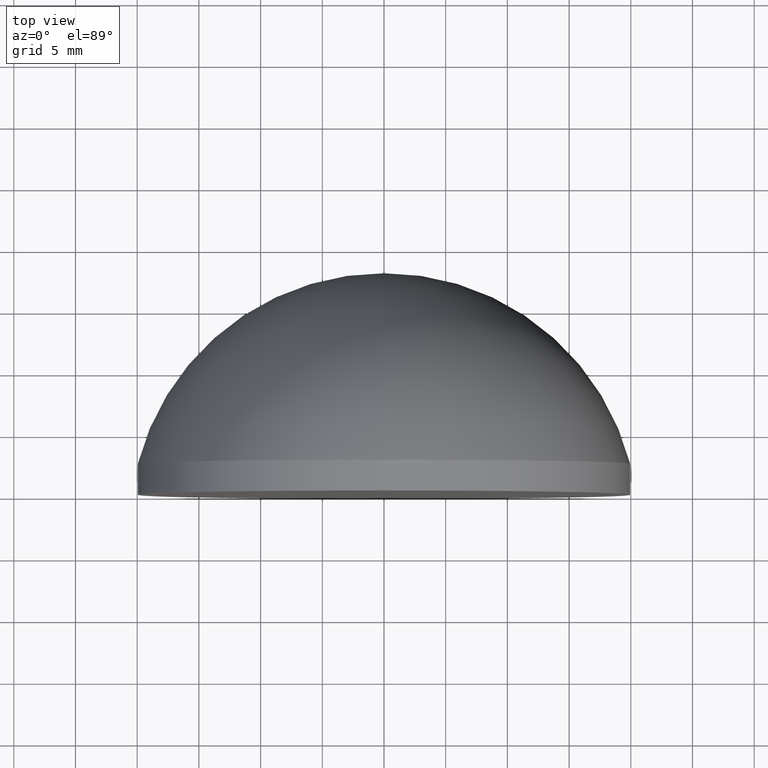
[diagram: clean part render]
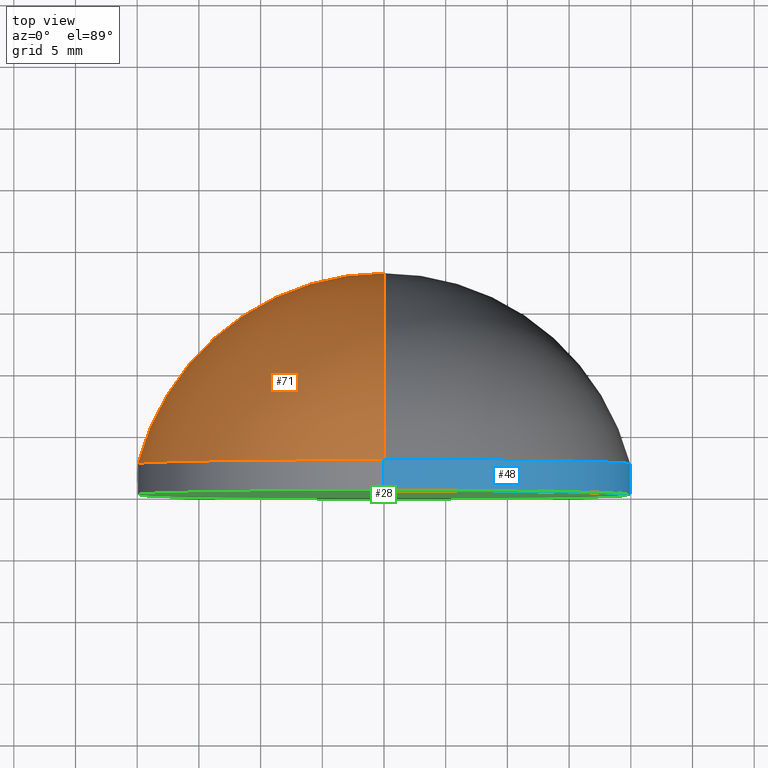
[diagram: same view with three faces highlighted in distinct colors, each labeled with its STEP entity id]
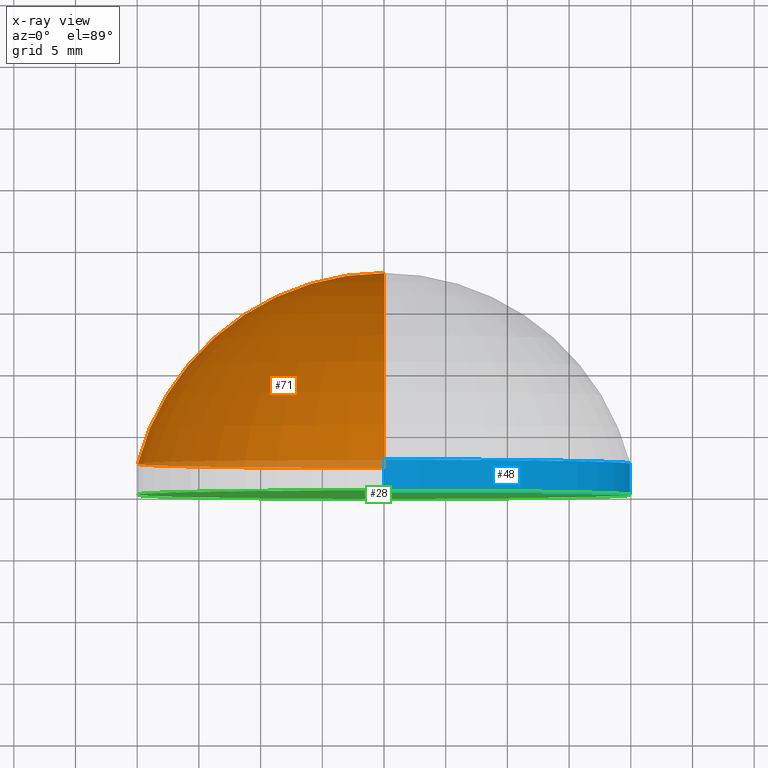
[diagram: x-ray of the same camera — body ghosted, the three highlighted faces saturated]
A machine part, top view with three faces highlighted in distinct colors.
The next image is the same camera in x-ray (body ghosted, the three faces saturated) — at least one of them is partly hidden behind the body in this view.
Their STEP definitions:

[orange] entity #71 — the highlighted toroidal blend (fillet) surface has major radius 0 mm and minor (blend) radius 20.67 mm.
#4 = ORIENTED_EDGE ( 'NONE', *, *, #84, .F. ) ;
#14 = DIRECTION ( 'NONE',  ( 0.000000000000000000, 0.000000000000000000, 1.000000000000000000 ) ) ;
#16 = DIRECTION ( 'NONE',  ( -0.000000000000000000, 1.000000000000000000, -0.000000000000000000 ) ) ;
#30 = CARTESIAN_POINT ( 'NONE',  ( 0.000000000000000000, 2.499999999999996447, 20.00000000000000355 ) ) ;
#32 = DIRECTION ( 'NONE',  ( 1.000000000000000000, 0.000000000000000000, 1.224646799147353207E-16 ) ) ;
#53 = TOROIDAL_SURFACE ( 'NONE', #117, -1.249999708081983574E-05, 20.67000000000000171 ) ;
#58 = AXIS2_PLACEMENT_3D ( 'NONE', #122, #165, #168 ) ;
#62 = AXIS2_PLACEMENT_3D ( 'NONE', #124, #32, #164 ) ;
#63 = CARTESIAN_POINT ( 'NONE',  ( 0.000000000000000000, 17.94999999999999929, 0.000000000000000000 ) ) ;
#71 = ADVANCED_FACE ( 'NONE', ( #104 ), #53, .T. ) ;
#72 = VERTEX_POINT ( 'NONE', #30 ) ;
#73 = ORIENTED_EDGE ( 'NONE', *, *, #187, .T. ) ;
#78 = CARTESIAN_POINT ( 'NONE',  ( 2.449293598294706513E-15, 2.499999999999996447, -20.00000000000000355 ) ) ;
#83 = AXIS2_PLACEMENT_3D ( 'NONE', #185, #91, #201 ) ;
#84 = EDGE_CURVE ( 'NONE', #93, #182, #147, .T. ) ;
#91 = DIRECTION ( 'NONE',  ( -0.000000000000000000, 1.000000000000000000, -0.000000000000000000 ) ) ;
#93 = VERTEX_POINT ( 'NONE', #78 ) ;
#104 = FACE_OUTER_BOUND ( 'NONE', #181, .T. ) ;
#117 = AXIS2_PLACEMENT_3D ( 'NONE', #167, #16, #14 ) ;
#122 = CARTESIAN_POINT ( 'NONE',  ( 0.000000000000000000, -2.719999999996218332, -1.249999708081983574E-05 ) ) ;
#124 = CARTESIAN_POINT ( 'NONE',  ( -1.530808141437727086E-21, -2.719999999996218332, 1.249999708081983574E-05 ) ) ;
#128 = ORIENTED_EDGE ( 'NONE', *, *, #189, .T. ) ;
#146 = CIRCLE ( 'NONE', #58, 20.67000000000000171 ) ;
#147 = CIRCLE ( 'NONE', #62, 20.67000000000000171 ) ;
#164 = DIRECTION ( 'NONE',  ( 1.224646799147353207E-16, 0.000000000000000000, -1.000000000000000000 ) ) ;
#165 = DIRECTION ( 'NONE',  ( -1.000000000000000000, 0.000000000000000000, 0.000000000000000000 ) ) ;
#167 = CARTESIAN_POINT ( 'NONE',  ( 0.000000000000000000, -2.719999999996218332, 0.000000000000000000 ) ) ;
#168 = DIRECTION ( 'NONE',  ( 0.000000000000000000, 0.000000000000000000, 1.000000000000000000 ) ) ;
#172 = CIRCLE ( 'NONE', #83, 20.00000000000000000 ) ;
#181 = EDGE_LOOP ( 'NONE', ( #4, #128, #73 ) ) ;
#182 = VERTEX_POINT ( 'NONE', #63 ) ;
#185 = CARTESIAN_POINT ( 'NONE',  ( 0.000000000000000000, 2.499999999999996891, 0.000000000000000000 ) ) ;
#187 = EDGE_CURVE ( 'NONE', #72, #182, #146, .T. ) ;
#189 = EDGE_CURVE ( 'NONE', #93, #72, #172, .T. ) ;
#201 = DIRECTION ( 'NONE',  ( 0.000000000000000000, 0.000000000000000000, 1.000000000000000000 ) ) ;

[blue] entity #48 — the highlighted cylindrical surface (partial cylindrical patch) has radius 20 mm, axis along (-0, 1, -0).
#5 = ORIENTED_EDGE ( 'NONE', *, *, #11, .T. ) ;
#11 = EDGE_CURVE ( 'NONE', #97, #150, #166, .T. ) ;
#27 = EDGE_CURVE ( 'NONE', #72, #93, #143, .T. ) ;
#30 = CARTESIAN_POINT ( 'NONE',  ( 0.000000000000000000, 2.499999999999996447, 20.00000000000000355 ) ) ;
#34 = VECTOR ( 'NONE', #61, 1000.000000000000000 ) ;
#42 = LINE ( 'NONE', #106, #129 ) ;
#43 = CYLINDRICAL_SURFACE ( 'NONE', #161, 20.00000000000000000 ) ;
#48 = ADVANCED_FACE ( 'NONE', ( #153 ), #43, .T. ) ;
#60 = CARTESIAN_POINT ( 'NONE',  ( 0.000000000000000000, -3.469446951953614189E-15, 20.00000000000000000 ) ) ;
#61 = DIRECTION ( 'NONE',  ( -0.000000000000000000, 1.000000000000000000, -0.000000000000000000 ) ) ;
#72 = VERTEX_POINT ( 'NONE', #30 ) ;
#76 = DIRECTION ( 'NONE',  ( -0.000000000000000000, 1.000000000000000000, -0.000000000000000000 ) ) ;
#77 = CARTESIAN_POINT ( 'NONE',  ( 0.000000000000000000, 17.94999999999999929, 20.00000000000000000 ) ) ;
#78 = CARTESIAN_POINT ( 'NONE',  ( 2.449293598294706513E-15, 2.499999999999996447, -20.00000000000000355 ) ) ;
#79 = CARTESIAN_POINT ( 'NONE',  ( 2.449293598294706513E-15, -3.469446951953614189E-15, -20.00000000000000000 ) ) ;
#87 = DIRECTION ( 'NONE',  ( 0.000000000000000000, 0.000000000000000000, 1.000000000000000000 ) ) ;
#89 = AXIS2_PLACEMENT_3D ( 'NONE', #100, #76, #87 ) ;
#93 = VERTEX_POINT ( 'NONE', #78 ) ;
#97 = VERTEX_POINT ( 'NONE', #60 ) ;
#100 = CARTESIAN_POINT ( 'NONE',  ( 0.000000000000000000, 2.499999999999996891, 0.000000000000000000 ) ) ;
#102 = DIRECTION ( 'NONE',  ( -0.000000000000000000, 1.000000000000000000, -0.000000000000000000 ) ) ;
#106 = CARTESIAN_POINT ( 'NONE',  ( 2.449293598294706513E-15, 17.94999999999999929, -20.00000000000000000 ) ) ;
#114 = ORIENTED_EDGE ( 'NONE', *, *, #178, .F. ) ;
#115 = ORIENTED_EDGE ( 'NONE', *, *, #27, .F. ) ;
#119 = CARTESIAN_POINT ( 'NONE',  ( 0.000000000000000000, 17.94999999999999929, 0.000000000000000000 ) ) ;
#120 = DIRECTION ( 'NONE',  ( -0.000000000000000000, 1.000000000000000000, -0.000000000000000000 ) ) ;
#129 = VECTOR ( 'NONE', #102, 1000.000000000000000 ) ;
#139 = LINE ( 'NONE', #77, #34 ) ;
#143 = CIRCLE ( 'NONE', #89, 20.00000000000000000 ) ;
#148 = ORIENTED_EDGE ( 'NONE', *, *, #156, .T. ) ;
#150 = VERTEX_POINT ( 'NONE', #79 ) ;
#153 = FACE_OUTER_BOUND ( 'NONE', #162, .T. ) ;
#154 = DIRECTION ( 'NONE',  ( 0.000000000000000000, 0.000000000000000000, 1.000000000000000000 ) ) ;
#155 = DIRECTION ( 'NONE',  ( -0.000000000000000000, 1.000000000000000000, -0.000000000000000000 ) ) ;
#156 = EDGE_CURVE ( 'NONE', #150, #93, #42, .T. ) ;
#160 = AXIS2_PLACEMENT_3D ( 'NONE', #169, #120, #154 ) ;
#161 = AXIS2_PLACEMENT_3D ( 'NONE', #119, #155, #197 ) ;
#162 = EDGE_LOOP ( 'NONE', ( #5, #148, #115, #114 ) ) ;
#166 = CIRCLE ( 'NONE', #160, 20.00000000000000000 ) ;
#169 = CARTESIAN_POINT ( 'NONE',  ( 0.000000000000000000, -3.469446951953614189E-15, 0.000000000000000000 ) ) ;
#178 = EDGE_CURVE ( 'NONE', #97, #72, #139, .T. ) ;
#197 = DIRECTION ( 'NONE',  ( 0.000000000000000000, 0.000000000000000000, 1.000000000000000000 ) ) ;

[green] entity #28 — the highlighted planar face has unit normal (0, -1, 0).
#11 = EDGE_CURVE ( 'NONE', #97, #150, #166, .T. ) ;
#12 = CARTESIAN_POINT ( 'NONE',  ( 0.000000000000000000, -3.469446951953614189E-15, 0.000000000000000000 ) ) ;
#28 = ADVANCED_FACE ( 'NONE', ( #198 ), #138, .T. ) ;
#39 = ORIENTED_EDGE ( 'NONE', *, *, #101, .F. ) ;
#44 = DIRECTION ( 'NONE',  ( 0.000000000000000000, -1.000000000000000000, 0.000000000000000000 ) ) ;
#60 = CARTESIAN_POINT ( 'NONE',  ( 0.000000000000000000, -3.469446951953614189E-15, 20.00000000000000000 ) ) ;
#64 = DIRECTION ( 'NONE',  ( -0.000000000000000000, 1.000000000000000000, -0.000000000000000000 ) ) ;
#79 = CARTESIAN_POINT ( 'NONE',  ( 2.449293598294706513E-15, -3.469446951953614189E-15, -20.00000000000000000 ) ) ;
#88 = DIRECTION ( 'NONE',  ( 0.000000000000000000, -0.000000000000000000, -1.000000000000000000 ) ) ;
#97 = VERTEX_POINT ( 'NONE', #60 ) ;
#101 = EDGE_CURVE ( 'NONE', #150, #97, #177, .T. ) ;
#111 = AXIS2_PLACEMENT_3D ( 'NONE', #12, #64, #200 ) ;
#120 = DIRECTION ( 'NONE',  ( -0.000000000000000000, 1.000000000000000000, -0.000000000000000000 ) ) ;
#136 = CARTESIAN_POINT ( 'NONE',  ( 0.000000000000000000, -1.224646799147353256E-15, 0.000000000000000000 ) ) ;
#138 = PLANE ( 'NONE',  #184 ) ;
#150 = VERTEX_POINT ( 'NONE', #79 ) ;
#154 = DIRECTION ( 'NONE',  ( 0.000000000000000000, 0.000000000000000000, 1.000000000000000000 ) ) ;
#160 = AXIS2_PLACEMENT_3D ( 'NONE', #169, #120, #154 ) ;
#166 = CIRCLE ( 'NONE', #160, 20.00000000000000000 ) ;
#169 = CARTESIAN_POINT ( 'NONE',  ( 0.000000000000000000, -3.469446951953614189E-15, 0.000000000000000000 ) ) ;
#177 = CIRCLE ( 'NONE', #111, 20.00000000000000000 ) ;
#184 = AXIS2_PLACEMENT_3D ( 'NONE', #136, #44, #88 ) ;
#191 = EDGE_LOOP ( 'NONE', ( #193, #39 ) ) ;
#193 = ORIENTED_EDGE ( 'NONE', *, *, #11, .F. ) ;
#198 = FACE_OUTER_BOUND ( 'NONE', #191, .T. ) ;
#200 = DIRECTION ( 'NONE',  ( 0.000000000000000000, 0.000000000000000000, 1.000000000000000000 ) ) ;